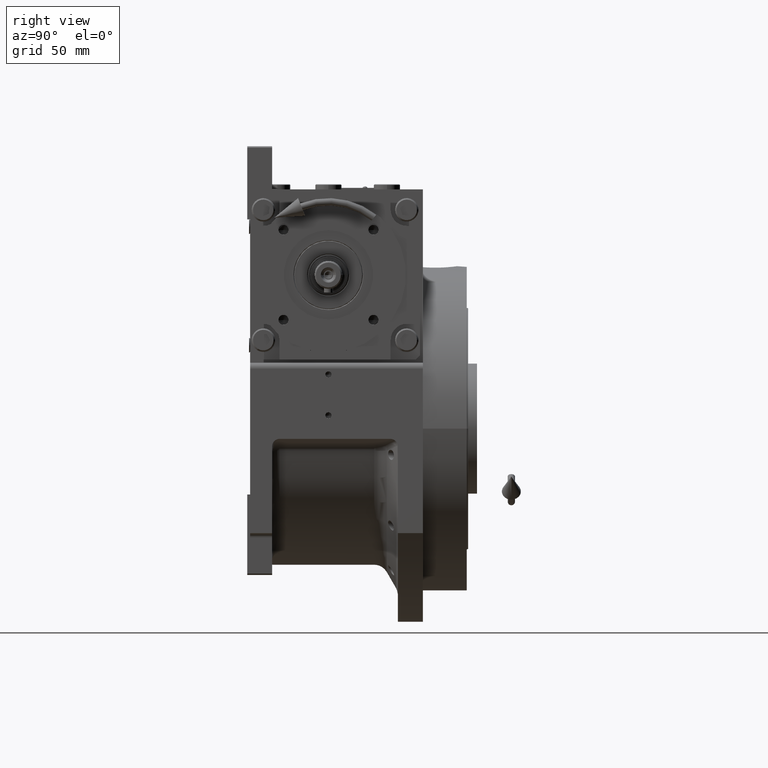
[diagram: clean part render]
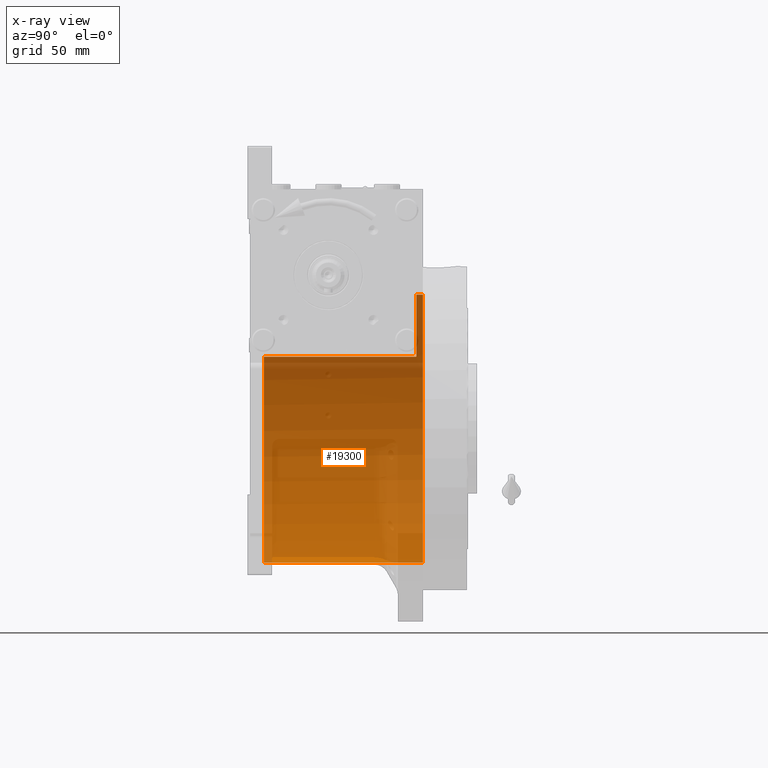
[diagram: x-ray — body ghosted, one internal face saturated and labeled with its STEP entity id]
A machine part, right view, then the same camera in x-ray: the body is ghosted and one INTERNAL B-rep face — a face not visible from any outside direction — is saturated and labeled: STEP entity #19300.
In plain terms, the highlighted cylindrical surface (partial cylindrical patch) has radius 91.5 mm, axis along (0, -1, 0).
Its self-contained STEP definition (entity closure, byte-faithful):
#4158 = VECTOR ( 'NONE', #46952, 1000.000000000000000 ) ;
#5703 = CARTESIAN_POINT ( 'NONE',  ( 0.000000000000000000, -44.00000000000000000, 0.000000000000000000 ) ) ;
#5873 = CYLINDRICAL_SURFACE ( 'NONE', #41892, 91.50000000000000000 ) ;
#6167 = LINE ( 'NONE', #23010, #52365 ) ;
#6608 = CARTESIAN_POINT ( 'NONE',  ( -77.27386362800814368, 60.00000000000000000, 48.99999999999998579 ) ) ;
#8869 = ORIENTED_EDGE ( 'NONE', *, *, #23945, .T. ) ;
#10014 = CARTESIAN_POINT ( 'NONE',  ( 1.120551821219827868E-14, 69.00000000000004263, 91.50000000000000000 ) ) ;
#11163 = DIRECTION ( 'NONE',  ( -0.000000000000000000, -1.000000000000000000, -0.000000000000000000 ) ) ;
#11819 = FACE_OUTER_BOUND ( 'NONE', #38334, .T. ) ;
#15671 = CARTESIAN_POINT ( 'NONE',  ( 0.000000000000000000, -44.00000000000000000, -91.50000000000000000 ) ) ;
#15786 = CARTESIAN_POINT ( 'NONE',  ( 1.120551821219827868E-14, 64.50000000000000000, 91.50000000000000000 ) ) ;
#16372 = CARTESIAN_POINT ( 'NONE',  ( 0.000000000000000000, 69.00000000000004263, 0.000000000000000000 ) ) ;
#16400 = CARTESIAN_POINT ( 'NONE',  ( 0.000000000000000000, 64.50000000000000000, 0.000000000000000000 ) ) ;
#17710 = DIRECTION ( 'NONE',  ( -0.000000000000000000, 1.000000000000000000, -0.000000000000000000 ) ) ;
#19300 = ADVANCED_FACE ( 'NONE', ( #11819 ), #5873, .F. ) ;
#23010 = CARTESIAN_POINT ( 'NONE',  ( -77.27386362800812947, 69.00000000000004263, 48.99999999999998579 ) ) ;
#23479 = LINE ( 'NONE', #39305, #68179 ) ;
#23945 = EDGE_CURVE ( 'NONE', #32672, #44172, #58152, .T. ) ;
#24635 = CARTESIAN_POINT ( 'NONE',  ( 1.120551821219827868E-14, 60.00000000000000000, 91.50000000000000000 ) ) ;
#27088 = CIRCLE ( 'NONE', #46219, 91.50000000000000000 ) ;
#27106 = DIRECTION ( 'NONE',  ( 0.000000000000000000, 1.000000000000000000, 0.000000000000000000 ) ) ;
#27471 = CARTESIAN_POINT ( 'NONE',  ( 0.000000000000000000, 60.00000000000000000, 0.000000000000000000 ) ) ;
#28418 = AXIS2_PLACEMENT_3D ( 'NONE', #5703, #27106, #52807 ) ;
#29333 = AXIS2_PLACEMENT_3D ( 'NONE', #27471, #48954, #61517 ) ;
#29808 = EDGE_CURVE ( 'NONE', #39476, #44172, #38346, .T. ) ;
#30029 = EDGE_CURVE ( 'NONE', #32672, #53572, #27088, .T. ) ;
#32672 = VERTEX_POINT ( 'NONE', #15786 ) ;
#37356 = CARTESIAN_POINT ( 'NONE',  ( 0.000000000000000000, 64.50000000000000000, -91.50000000000000000 ) ) ;
#37663 = EDGE_CURVE ( 'NONE', #59267, #39476, #6167, .T. ) ;
#37825 = DIRECTION ( 'NONE',  ( 0.000000000000000000, 0.000000000000000000, -1.000000000000000000 ) ) ;
#38334 = EDGE_LOOP ( 'NONE', ( #68594, #8869, #58569, #57864, #42922, #57415 ) ) ;
#38346 = CIRCLE ( 'NONE', #29333, 91.50000000000000000 ) ;
#39305 = CARTESIAN_POINT ( 'NONE',  ( 0.000000000000000000, 69.00000000000004263, -91.50000000000000000 ) ) ;
#39476 = VERTEX_POINT ( 'NONE', #6608 ) ;
#41892 = AXIS2_PLACEMENT_3D ( 'NONE', #16372, #43823, #37825 ) ;
#42508 = EDGE_CURVE ( 'NONE', #53572, #67224, #23479, .T. ) ;
#42922 = ORIENTED_EDGE ( 'NONE', *, *, #50788, .F. ) ;
#43823 = DIRECTION ( 'NONE',  ( 0.000000000000000000, -1.000000000000000000, 0.000000000000000000 ) ) ;
#44172 = VERTEX_POINT ( 'NONE', #24635 ) ;
#45262 = DIRECTION ( 'NONE',  ( 0.000000000000000000, -1.000000000000000000, 0.000000000000000000 ) ) ;
#46219 = AXIS2_PLACEMENT_3D ( 'NONE', #16400, #11163, #54021 ) ;
#46952 = DIRECTION ( 'NONE',  ( 0.000000000000000000, -1.000000000000000000, 0.000000000000000000 ) ) ;
#48954 = DIRECTION ( 'NONE',  ( 0.000000000000000000, 1.000000000000000000, 0.000000000000000000 ) ) ;
#50788 = EDGE_CURVE ( 'NONE', #67224, #59267, #59854, .T. ) ;
#51063 = CARTESIAN_POINT ( 'NONE',  ( -77.27386362800814368, -44.00000000000000000, 49.00000000000000000 ) ) ;
#52365 = VECTOR ( 'NONE', #17710, 1000.000000000000000 ) ;
#52807 = DIRECTION ( 'NONE',  ( 0.000000000000000000, 0.000000000000000000, 1.000000000000000000 ) ) ;
#53572 = VERTEX_POINT ( 'NONE', #37356 ) ;
#54021 = DIRECTION ( 'NONE',  ( 0.000000000000000000, 0.000000000000000000, 1.000000000000000000 ) ) ;
#57415 = ORIENTED_EDGE ( 'NONE', *, *, #42508, .F. ) ;
#57864 = ORIENTED_EDGE ( 'NONE', *, *, #37663, .F. ) ;
#58152 = LINE ( 'NONE', #10014, #4158 ) ;
#58569 = ORIENTED_EDGE ( 'NONE', *, *, #29808, .F. ) ;
#59267 = VERTEX_POINT ( 'NONE', #51063 ) ;
#59854 = CIRCLE ( 'NONE', #28418, 91.50000000000000000 ) ;
#61517 = DIRECTION ( 'NONE',  ( 1.776356839400250465E-15, 0.000000000000000000, -1.000000000000000000 ) ) ;
#67224 = VERTEX_POINT ( 'NONE', #15671 ) ;
#68179 = VECTOR ( 'NONE', #45262, 1000.000000000000000 ) ;
#68594 = ORIENTED_EDGE ( 'NONE', *, *, #30029, .F. ) ;